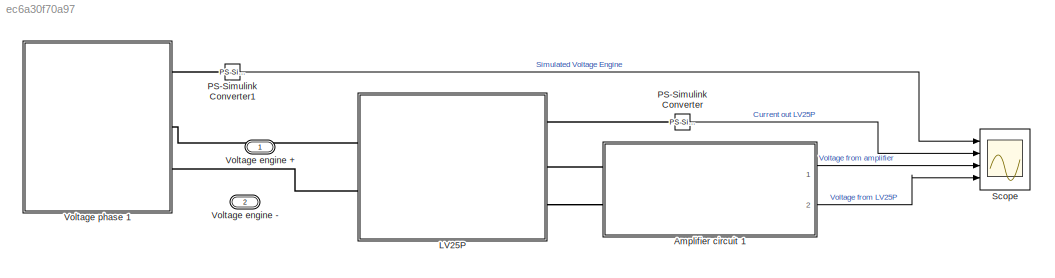
MODEL slx_ec6a30f70a97
KIND model
CONFIG AbsTol = auto
CONFIG EnableMultiTasking = off
CONFIG FixedStep = auto
CONFIG MaxStep = auto
CONFIG MinStep = auto
CONFIG RelTol = 1e-3
CONFIG SampleTimeConstraint = Unconstrained
CONFIG SolverName = VariableStepAuto
CONFIG StartTime = 0.0
CONFIG StopTime = 0.1
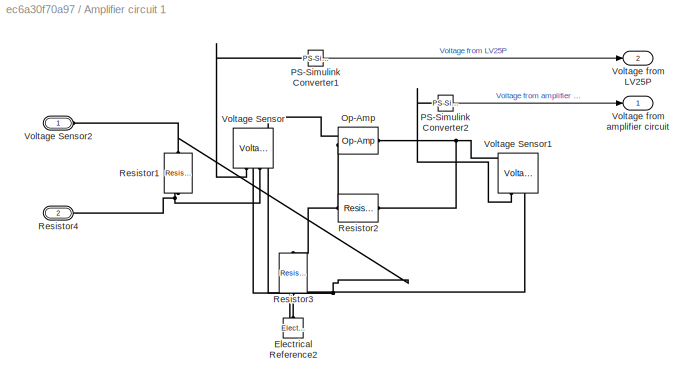
BLOCK [SubSystem] Amplifier circuit 1
  Ports = [0, 2, 0, 0, 0, 2]
  RequestExecContextInheritance = off
BLOCK [Reference] Amplifier circuit 1/Electrical Reference2  REF=fl_lib/Electrical/Electrical Elements/Electrical Reference
  NameLocation = right
  Ports = [0, 0, 0, 0, 0, 1]
  SourceBlock = fl_lib/Electrical/Electrical Elements/Electrical Reference
  SourceProductBaseCode = SS
  SourceType = Electrical Reference
BLOCK [Reference] Amplifier circuit 1/Op-Amp  REF=fl_lib/Electrical/Electrical Elements/Op-Amp
  Ports = [0, 0, 0, 0, 0, 2, 1]
  SourceBlock = fl_lib/Electrical/Electrical Elements/Op-Amp
  SourceProductBaseCode = SS
  SourceType = Op-Amp
BLOCK [Reference] Amplifier circuit 1/PS-Simulink Converter1  REF=nesl_utility/PS-Simulink
Converter
  Ports = [0, 1, 0, 0, 0, 1]
  SourceBlock = nesl_utility/PS-Simulink\nConverter
  SourceProductBaseCode = SS
  SourceType = PS-Simulink\nConverter
BLOCK [Reference] Amplifier circuit 1/PS-Simulink Converter2  REF=nesl_utility/PS-Simulink
Converter
  Ports = [0, 1, 0, 0, 0, 1]
  SourceBlock = nesl_utility/PS-Simulink\nConverter
  SourceProductBaseCode = SS
  SourceType = PS-Simulink\nConverter
BLOCK [Reference] Amplifier circuit 1/Resistor1  REF=fl_lib/Electrical/Electrical Elements/Resistor
  NameLocation = left
  Ports = [0, 0, 0, 0, 0, 1, 1]
  SourceBlock = fl_lib/Electrical/Electrical Elements/Resistor
  SourceProductBaseCode = SS
  SourceType = Resistor
BLOCK [Reference] Amplifier circuit 1/Resistor2  REF=fl_lib/Electrical/Electrical Elements/Resistor
  Ports = [0, 0, 0, 0, 0, 1, 1]
  SourceBlock = fl_lib/Electrical/Electrical Elements/Resistor
  SourceProductBaseCode = SS
  SourceType = Resistor
BLOCK [Reference] Amplifier circuit 1/Resistor3  REF=fl_lib/Electrical/Electrical Elements/Resistor
  NameLocation = left
  Ports = [0, 0, 0, 0, 0, 1, 1]
  SourceBlock = fl_lib/Electrical/Electrical Elements/Resistor
  SourceProductBaseCode = SS
  SourceType = Resistor
BLOCK [PMIOPort] Amplifier circuit 1/Resistor4
  Port = 2
  Side = Left
BLOCK [Reference] Amplifier circuit 1/Voltage Sensor  REF=fl_lib/Electrical/Electrical Sensors/Voltage Sensor
  NameLocation = right
  Ports = [0, 0, 0, 0, 0, 1, 2]
  SourceBlock = fl_lib/Electrical/Electrical Sensors/Voltage Sensor
  SourceProductBaseCode = SS
  SourceType = Voltage Sensor
BLOCK [Reference] Amplifier circuit 1/Voltage Sensor1  REF=fl_lib/Electrical/Electrical Sensors/Voltage Sensor
  NameLocation = right
  Ports = [0, 0, 0, 0, 0, 1, 2]
  SourceBlock = fl_lib/Electrical/Electrical Sensors/Voltage Sensor
  SourceProductBaseCode = SS
  SourceType = Voltage Sensor
BLOCK [PMIOPort] Amplifier circuit 1/Voltage Sensor2
  Side = Left
BLOCK [Outport] Amplifier circuit 1/Voltage from LV25P
  Port = 2
BLOCK [Outport] Amplifier circuit 1/Voltage from amplifier circuit
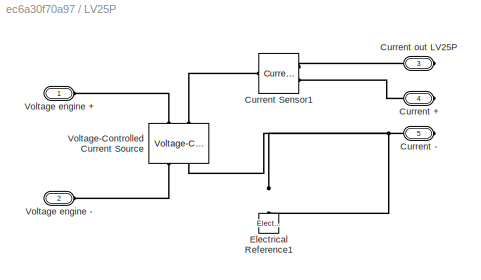
BLOCK [SubSystem] LV25P
  Ports = [0, 0, 0, 0, 0, 2, 3]
  RequestExecContextInheritance = off
BLOCK [PMIOPort] LV25P/Current +
  Port = 4
  Side = Right
BLOCK [PMIOPort] LV25P/Current -
  Port = 5
  Side = Right
BLOCK [Reference] LV25P/Current Sensor1  REF=fl_lib/Electrical/Electrical Sensors/Current Sensor
  Ports = [0, 0, 0, 0, 0, 1, 2]
  SourceBlock = fl_lib/Electrical/Electrical Sensors/Current Sensor
  SourceProductBaseCode = SS
  SourceType = Current Sensor
BLOCK [PMIOPort] LV25P/Current out LV25P
  Port = 3
  Side = Right
BLOCK [Reference] LV25P/Electrical Reference1  REF=fl_lib/Electrical/Electrical Elements/Electrical Reference
  NameLocation = right
  Ports = [0, 0, 0, 0, 0, 1]
  SourceBlock = fl_lib/Electrical/Electrical Elements/Electrical Reference
  SourceProductBaseCode = SS
  SourceType = Electrical Reference
BLOCK [PMIOPort] LV25P/Voltage engine +
  Side = Left
BLOCK [PMIOPort] LV25P/Voltage engine -
  Port = 2
  Side = Left
BLOCK [Reference] LV25P/Voltage-Controlled Current Source  REF=fl_lib/Electrical/Electrical Sources/Voltage-Controlled
Current Source
  NameLocation = right
  Ports = [0, 0, 0, 0, 0, 2, 2]
  SourceBlock = fl_lib/Electrical/Electrical Sources/Voltage-Controlled\nCurrent Source
  SourceProductBaseCode = SS
  SourceType = Voltage-Controlled\nCurrent Source
BLOCK [Reference] PS-Simulink Converter  REF=nesl_utility/PS-Simulink
Converter
  Ports = [0, 1, 0, 0, 0, 1]
  SourceBlock = nesl_utility/PS-Simulink\nConverter
  SourceProductBaseCode = SS
  SourceType = PS-Simulink\nConverter
BLOCK [Reference] PS-Simulink Converter1  REF=nesl_utility/PS-Simulink
Converter
  Ports = [0, 1, 0, 0, 0, 1]
  SourceBlock = nesl_utility/PS-Simulink\nConverter
  SourceProductBaseCode = SS
  SourceType = PS-Simulink\nConverter
BLOCK [Scope] Scope
  Floating = off
  NumInputPorts = 4
  Ports = [4]
  ScopeSpecificationString = Simulink.scopes.TimeScopeBlockCfg('CurrentConfiguration', extmgr.ConfigurationSet(extmgr.Configuration('Core','General UI',true),extmgr.Configuration('Core','Source UI',true),extmgr.Configuration('Sources','WiredSimulink',true),extmgr.Configuration('Visuals','Time Domain',true,'SerializedDisplays',{struct('MinYLimReal','-249.29185','MaxYLimReal','249.82656','YLabelReal','','MinYLimMag',' 0.00000',...<+3764ch>
BLOCK [PMIOPort] Voltage engine +
  Side = Left
BLOCK [PMIOPort] Voltage engine -
  Port = 2
  Side = Left
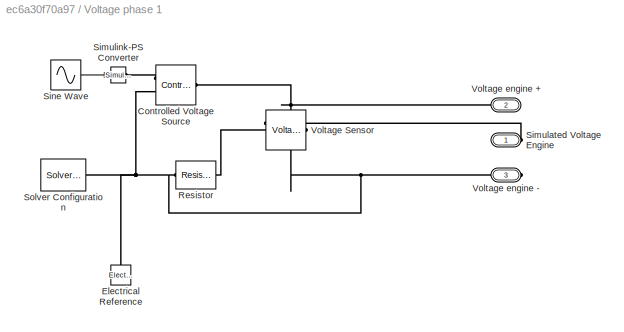
BLOCK [SubSystem] Voltage phase 1
  Ports = [0, 0, 0, 0, 0, 0, 3]
  RequestExecContextInheritance = off
BLOCK [Reference] Voltage phase 1/Controlled Voltage Source  REF=fl_lib/Electrical/Electrical Sources/Controlled Voltage
Source
  Ports = [0, 0, 0, 0, 0, 1, 2]
  SourceBlock = fl_lib/Electrical/Electrical Sources/Controlled Voltage\nSource
  SourceProductBaseCode = SS
  SourceType = Controlled Voltage\nSource
BLOCK [Reference] Voltage phase 1/Electrical Reference  REF=fl_lib/Electrical/Electrical Elements/Electrical Reference
  NameLocation = right
  Ports = [0, 0, 0, 0, 0, 1]
  SourceBlock = fl_lib/Electrical/Electrical Elements/Electrical Reference
  SourceProductBaseCode = SS
  SourceType = Electrical Reference
BLOCK [Reference] Voltage phase 1/Resistor  REF=fl_lib/Electrical/Electrical Elements/Resistor
  Ports = [0, 0, 0, 0, 0, 1, 1]
  SourceBlock = fl_lib/Electrical/Electrical Elements/Resistor
  SourceProductBaseCode = SS
  SourceType = Resistor
BLOCK [PMIOPort] Voltage phase 1/Simulated Voltage Engine
  Side = Right
BLOCK [Reference] Voltage phase 1/Simulink-PS Converter  REF=nesl_utility/Simulink-PS
Converter
  Ports = [1, 0, 0, 0, 0, 0, 1]
  SourceBlock = nesl_utility/Simulink-PS\nConverter
  SourceProductBaseCode = SS
  SourceType = Simulink-PS\nConverter
BLOCK [Sin] Voltage phase 1/Sine Wave
  Amplitude = 200
  Frequency = 200
  Ports = [0, 1]
  SampleTime = 0
BLOCK [Reference] Voltage phase 1/Solver Configuration  REF=nesl_utility/Solver
Configuration
  Ports = [0, 0, 0, 0, 0, 0, 1]
  SourceBlock = nesl_utility/Solver\nConfiguration
  SourceProductBaseCode = SS
  SourceType = Solver\nConfiguration
BLOCK [Reference] Voltage phase 1/Voltage Sensor  REF=fl_lib/Electrical/Electrical Sensors/Voltage Sensor
  NameLocation = top
  Ports = [0, 0, 0, 0, 0, 1, 2]
  SourceBlock = fl_lib/Electrical/Electrical Sensors/Voltage Sensor
  SourceProductBaseCode = SS
  SourceType = Voltage Sensor
BLOCK [PMIOPort] Voltage phase 1/Voltage engine +
  Port = 2
  Side = Right
BLOCK [PMIOPort] Voltage phase 1/Voltage engine -
  Port = 3
  Side = Right
LINE Amplifier circuit 1/PS-Simulink Converter1:1 -> Amplifier circuit 1/Voltage from LV25P:1
LINE Amplifier circuit 1/PS-Simulink Converter2:1 -> Amplifier circuit 1/Voltage from amplifier circuit:1
LINE Amplifier circuit 1:1 -> Scope:3
LINE Amplifier circuit 1:2 -> Scope:4
LINE PS-Simulink Converter1:1 -> Scope:1
LINE PS-Simulink Converter:1 -> Scope:2
LINE Voltage phase 1/Sine Wave:1 -> Voltage phase 1/Simulink-PS Converter:1
PNET net1: Amplifier circuit 1/Electrical Reference2:LConn1 -- Amplifier circuit 1/Resistor3:RConn1 -- Amplifier circuit 1/Voltage Sensor1:RConn2
PNET net2: Amplifier circuit 1/Op-Amp:LConn1 -- Amplifier circuit 1/Resistor1:LConn1 -- Amplifier circuit 1/Voltage Sensor2:RConn1 -- Amplifier circuit 1/Voltage Sensor:LConn1
PNET net3: Amplifier circuit 1/Op-Amp:LConn2 -- Amplifier circuit 1/Resistor2:LConn1 -- Amplifier circuit 1/Resistor3:LConn1
PNET net4: Amplifier circuit 1/Op-Amp:RConn1 -- Amplifier circuit 1/Resistor2:RConn1 -- Amplifier circuit 1/Voltage Sensor1:LConn1
PLINE Amplifier circuit 1/PS-Simulink Converter1:LConn1 -- Amplifier circuit 1/Voltage Sensor:RConn1
PLINE Amplifier circuit 1/PS-Simulink Converter2:LConn1 -- Amplifier circuit 1/Voltage Sensor1:RConn1
PNET net5: Amplifier circuit 1/Resistor1:RConn1 -- Amplifier circuit 1/Resistor4:RConn1 -- Amplifier circuit 1/Voltage Sensor:RConn2
PLINE Amplifier circuit 1:LConn1 -- LV25P:RConn2
PLINE Amplifier circuit 1:LConn2 -- LV25P:RConn3
PLINE LV25P/Current +:RConn1 -- LV25P/Current Sensor1:RConn2
PNET net6: LV25P/Current -:RConn1 -- LV25P/Electrical Reference1:LConn1 -- LV25P/Voltage-Controlled Current Source:RConn2
PLINE LV25P/Current Sensor1:LConn1 -- LV25P/Voltage-Controlled Current Source:LConn2
PLINE LV25P/Current Sensor1:RConn1 -- LV25P/Current out LV25P:RConn1
PLINE LV25P/Voltage engine +:RConn1 -- LV25P/Voltage-Controlled Current Source:LConn1
PLINE LV25P/Voltage engine -:RConn1 -- LV25P/Voltage-Controlled Current Source:RConn1
PLINE LV25P:LConn1 -- Voltage phase 1:RConn2
PLINE LV25P:LConn2 -- Voltage phase 1:RConn3
PLINE LV25P:RConn1 -- PS-Simulink Converter:LConn1
PLINE PS-Simulink Converter1:LConn1 -- Voltage phase 1:RConn1
PNET net7: Voltage phase 1/Controlled Voltage Source:LConn1 -- Voltage phase 1/Resistor:RConn1 -- Voltage phase 1/Voltage Sensor:LConn1 -- Voltage phase 1/Voltage engine +:RConn1
PLINE Voltage phase 1/Controlled Voltage Source:RConn1 -- Voltage phase 1/Simulink-PS Converter:RConn1
PNET net8: Voltage phase 1/Controlled Voltage Source:RConn2 -- Voltage phase 1/Electrical Reference:LConn1 -- Voltage phase 1/Resistor:LConn1 -- Voltage phase 1/Solver Configuration:RConn1 -- Voltage phase 1/Voltage Sensor:RConn2 -- Voltage phase 1/Voltage engine -:RConn1
PLINE Voltage phase 1/Simulated Voltage Engine:RConn1 -- Voltage phase 1/Voltage Sensor:RConn1
note: PNET lines group multi-terminal physical nets as a canonical sorted terminal list (undirected conserving connections); 2-terminal nets keep the pairwise PLINE form
